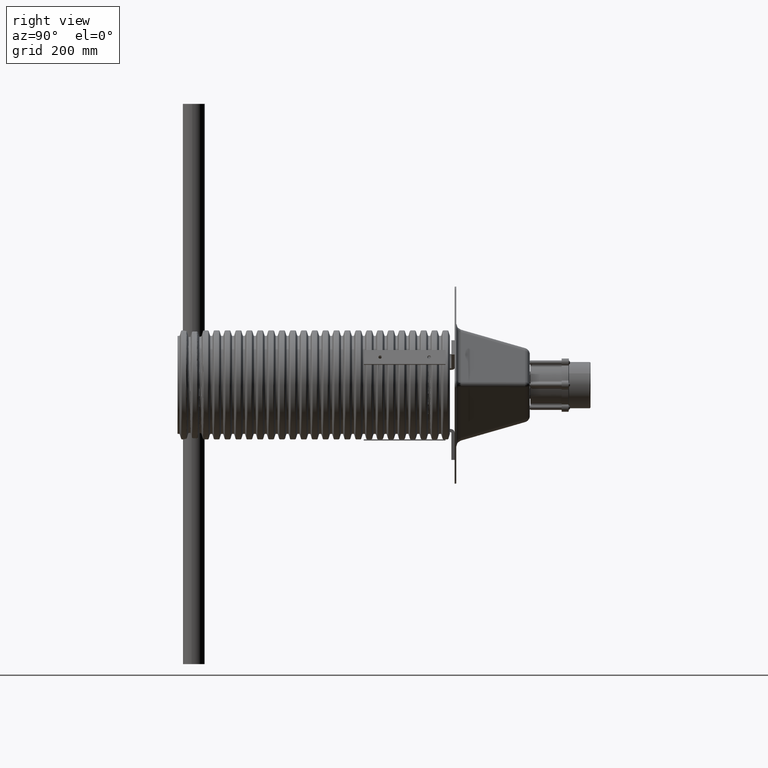
[diagram: clean part render]
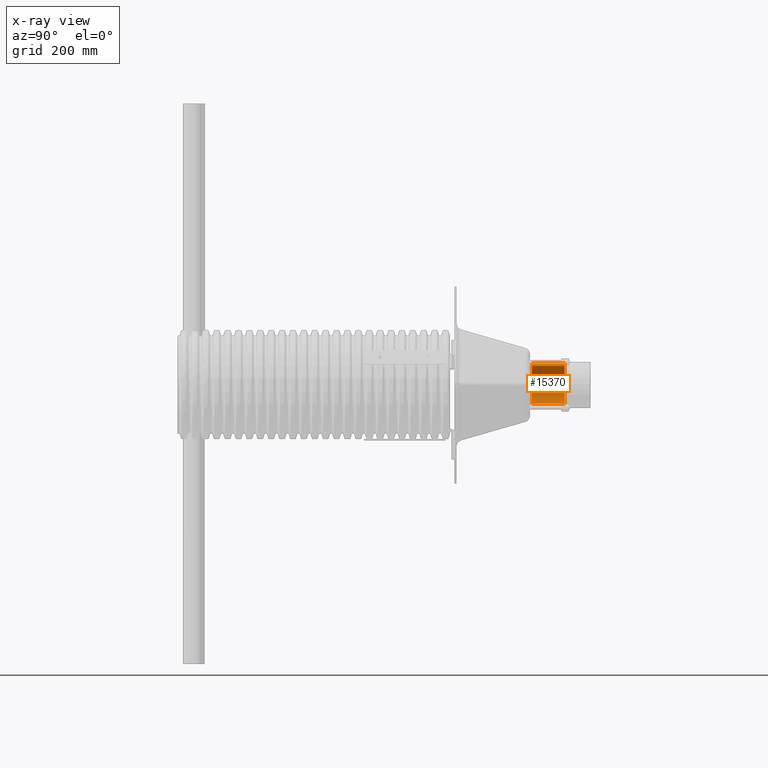
[diagram: x-ray — body ghosted, one internal face saturated and labeled with its STEP entity id]
A machine part, right view, then the same camera in x-ray: the body is ghosted and one INTERNAL B-rep face — a face not visible from any outside direction — is saturated and labeled: STEP entity #15370.
In plain terms, the highlighted cylindrical surface (edge-blend (fillet) strip) has radius 39.5 mm, axis along (-0, 1, 0).
Its self-contained STEP definition (entity closure, byte-faithful):
#3944 = VERTEX_POINT ( 'NONE', #7367 ) ;
#5976 = CIRCLE ( 'NONE', #43804, 39.50000000000000000 ) ;
#6632 = FACE_OUTER_BOUND ( 'NONE', #30963, .T. ) ;
#7367 = CARTESIAN_POINT ( 'NONE',  ( -39.49999999999611333, -3.608224830031758756E-12, 59.99999999999994316 ) ) ;
#7779 = EDGE_CURVE ( 'NONE', #23180, #3944, #27647, .T. ) ;
#7943 = AXIS2_PLACEMENT_3D ( 'NONE', #43385, #43232, #21976 ) ;
#9582 = CARTESIAN_POINT ( 'NONE',  ( 3.885780586188047891E-12, -3.608224830031758756E-12, 59.99999999999994316 ) ) ;
#13193 = DIRECTION ( 'NONE',  ( 1.000000000000000000, 0.0000000000000000000, 0.0000000000000000000 ) ) ;
#13764 = VECTOR ( 'NONE', #14852, 1000.000000000000000 ) ;
#14102 = CARTESIAN_POINT ( 'NONE',  ( -39.49999999999611333, -3.608224830031758756E-12, 59.99999999999994316 ) ) ;
#14852 = DIRECTION ( 'NONE',  ( 7.888609052210118054E-31, 2.366582715663035416E-30, -1.000000000000000000 ) ) ;
#14900 = LINE ( 'NONE', #21901, #13764 ) ;
#15054 = CYLINDRICAL_SURFACE ( 'NONE', #7943, 39.50000000000000000 ) ;
#15370 = ADVANCED_FACE ( 'NONE', ( #6632 ), #15054, .F. ) ;
#17912 = ORIENTED_EDGE ( 'NONE', *, *, #7779, .T. ) ;
#18257 = ORIENTED_EDGE ( 'NONE', *, *, #19703, .F. ) ;
#18901 = AXIS2_PLACEMENT_3D ( 'NONE', #9582, #34605, #13193 ) ;
#19703 = EDGE_CURVE ( 'NONE', #35686, #29484, #5976, .T. ) ;
#20016 = CARTESIAN_POINT ( 'NONE',  ( 39.50000000000388667, -3.603387475175126226E-12, 3.116000575622997752E-29 ) ) ;
#20224 = LINE ( 'NONE', #14102, #38135 ) ;
#20698 = DIRECTION ( 'NONE',  ( -7.888609052210118054E-31, -2.366582715663035416E-30, 1.000000000000000000 ) ) ;
#21506 = CARTESIAN_POINT ( 'NONE',  ( 39.50000000000388667, -3.603387475175126226E-12, 59.99999999999994316 ) ) ;
#21901 = CARTESIAN_POINT ( 'NONE',  ( 39.50000000000388667, -3.603387475175126226E-12, 59.99999999999994316 ) ) ;
#21976 = DIRECTION ( 'NONE',  ( -1.000000000000000000, 0.0000000000000000000, 0.0000000000000000000 ) ) ;
#23180 = VERTEX_POINT ( 'NONE', #21506 ) ;
#24870 = DIRECTION ( 'NONE',  ( 7.888609052210118054E-31, 2.366582715663035416E-30, -1.000000000000000000 ) ) ;
#27647 = CIRCLE ( 'NONE', #18901, 39.50000000000000000 ) ;
#29484 = VERTEX_POINT ( 'NONE', #43491 ) ;
#30963 = EDGE_LOOP ( 'NONE', ( #37249, #17912, #38458, #18257 ) ) ;
#32482 = EDGE_CURVE ( 'NONE', #3944, #29484, #20224, .T. ) ;
#34605 = DIRECTION ( 'NONE',  ( -7.888609052210118054E-31, -2.366582715663035416E-30, 1.000000000000000000 ) ) ;
#35686 = VERTEX_POINT ( 'NONE', #20016 ) ;
#37249 = ORIENTED_EDGE ( 'NONE', *, *, #41930, .F. ) ;
#38135 = VECTOR ( 'NONE', #24870, 1000.000000000000000 ) ;
#38458 = ORIENTED_EDGE ( 'NONE', *, *, #32482, .T. ) ;
#41930 = EDGE_CURVE ( 'NONE', #23180, #35686, #14900, .T. ) ;
#42145 = CARTESIAN_POINT ( 'NONE',  ( 3.885780586188047891E-12, -3.608224830031758756E-12, 0.0000000000000000000 ) ) ;
#43232 = DIRECTION ( 'NONE',  ( 7.888609052210118054E-31, 2.366582715663035416E-30, -1.000000000000000000 ) ) ;
#43385 = CARTESIAN_POINT ( 'NONE',  ( 3.885780586188047891E-12, -3.608224830031758756E-12, 59.99999999999994316 ) ) ;
#43491 = CARTESIAN_POINT ( 'NONE',  ( -39.49999999999611333, -3.608224830031758756E-12, -3.116000575622996631E-29 ) ) ;
#43804 = AXIS2_PLACEMENT_3D ( 'NONE', #42145, #20698, #45719 ) ;
#45719 = DIRECTION ( 'NONE',  ( 1.000000000000000000, 0.0000000000000000000, -7.888609052210118054E-31 ) ) ;